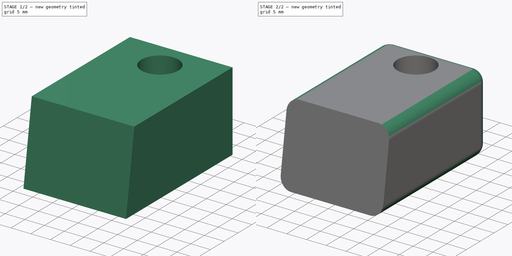
[diagram: build sequence overview — one tinted view per stage of 2, left to right]
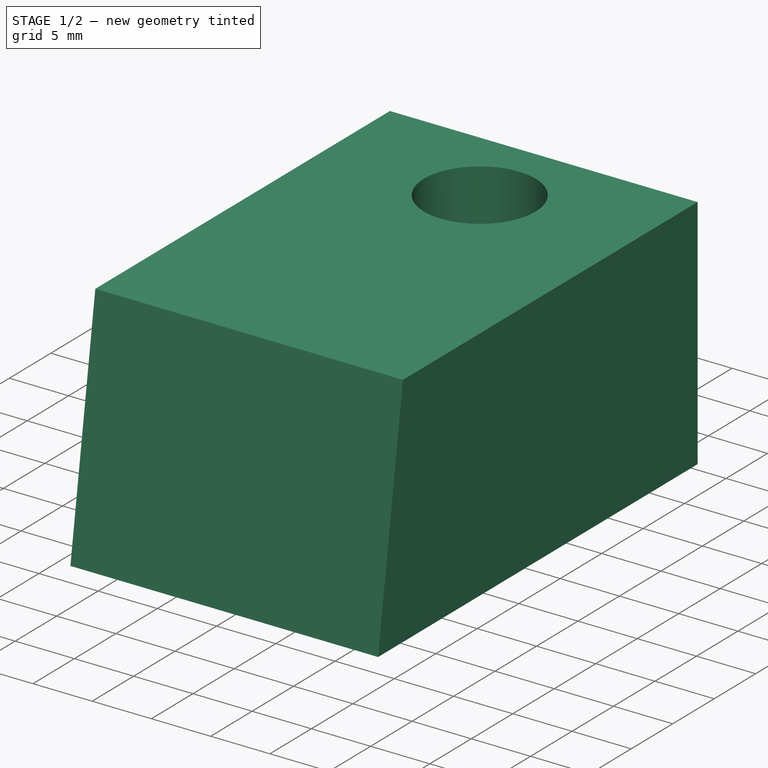
[diagram: stage 1 of 2 — iso view after this stage's code; geometry added in this stage tinted green]
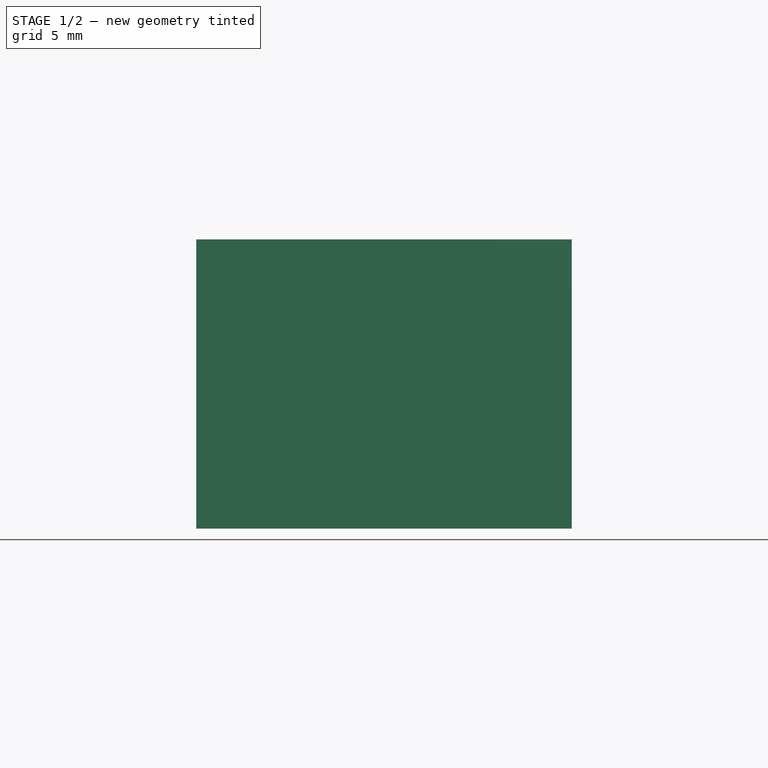
[diagram: stage 1 of 2 — front view after this stage's code; geometry added in this stage tinted green]
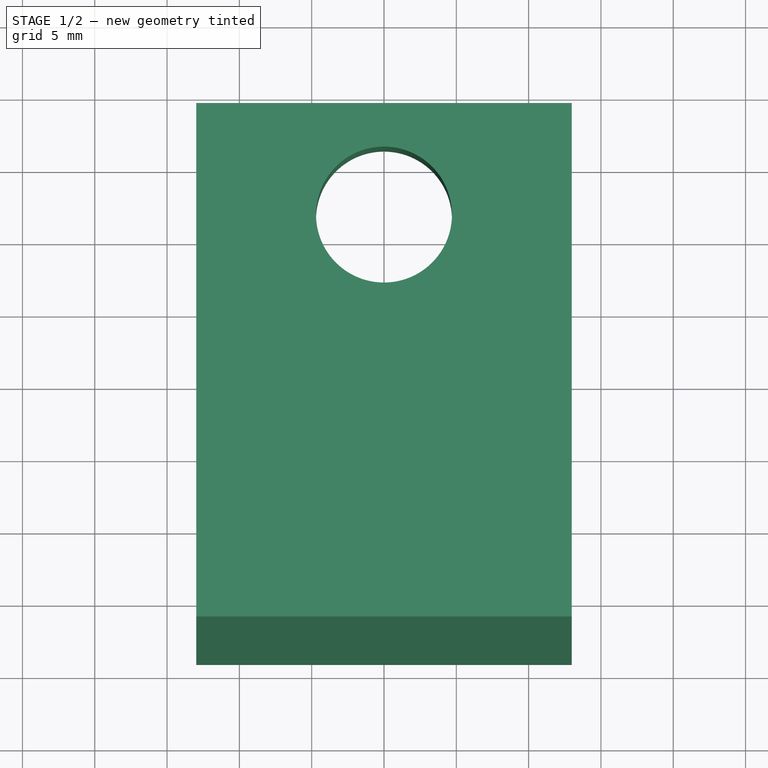
[diagram: stage 1 of 2 — top view after this stage's code; geometry added in this stage tinted green]
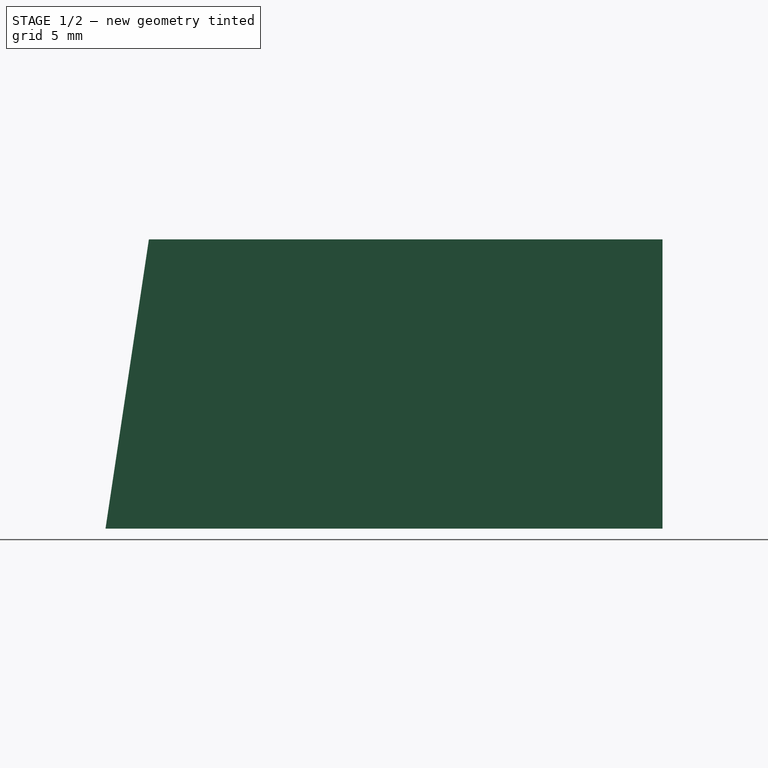
[diagram: stage 1 of 2 — right view after this stage's code; geometry added in this stage tinted green]
FCSTD DOCUMENT  (FreeCAD 0.16R6705 (Git))
Label: salvaantennataranis
License: All rights reserved
LicenseURL: http://it.wikipedia.org/wiki/<copyright redacted>
objects: Sketcher::SketchObject×2, PartDesign::Pad×1, PartDesign::Pocket×1, PartDesign::Fillet×1
note: 7 computed .brp shape members not serialized (recipe doc carries the construction recipe); baked Part::Feature solids carry a one-line shape summary decoded from their .brp

FEATURE [Sketcher::SketchObject] Sketch
  sketch-geometry (5):
    g0: LineSegment StartX=-12.9864 StartY=39.4405 StartZ=0 EndX=12.9864 EndY=39.4405 EndZ=0
    g1: LineSegment StartX=12.9864 StartY=39.4405 StartZ=0 EndX=12.9864 EndY=0.926848 EndZ=0
    g2: LineSegment StartX=12.9864 StartY=0.926848 StartZ=0 EndX=-12.9864 EndY=0.926848 EndZ=0
    g3: LineSegment StartX=-12.9864 StartY=0.926848 StartZ=0 EndX=-12.9864 EndY=39.4405 EndZ=0
    g4: Circle CenterX=0 CenterY=31.7268 CenterZ=0 NormalX=0 NormalY=0 NormalZ=1 Radius=4.7
  constraints (12):
    c: Coincident(g0,g1)
    c: Coincident(g1,g2)
    c: Coincident(g2,g3)
    c: Coincident(g3,g0)
    c: Horizontal(g0)
    c: Horizontal(g2)
    c: Vertical(g1)
    c: Vertical(g3)
    c: Symmetric(g1,g2,g-2)
    c: PointOnObject(g4,g-2)
    c: Radius(g4) = 4.7
    c: DistanceY(g1,g4) = 30.8
FEATURE [PartDesign::Pad] Pad
  Length = 20
  Length2 = 100
  Sketch = -> Sketch
  Type = 0
FEATURE [Sketcher::SketchObject] Sketch001
  ExternalGeometry = -> [Pad]
  Placement = pos=(12.9864,0,0) rot=(0.57735,0.57735,0.57735;2.0944rad)
  Support = -> Pad [Face2]
  sketch-geometry (3):
    g0: LineSegment StartX=0.926848 StartY=20 StartZ=0 EndX=0.926848 EndY=0 EndZ=0
    g1: LineSegment StartX=0.926848 StartY=0 StartZ=0 EndX=3.92685 EndY=20 EndZ=0
    g2: LineSegment StartX=3.92685 StartY=20 StartZ=0 EndX=0.926848 EndY=20 EndZ=0
  constraints (7):
    c: Coincident(g2,g1)
    c: Coincident(g1,g0)
    c: Coincident(g2,g0)
    c: Coincident(g-3,g0)
    c: Coincident(g0,g-4)
    c: PointOnObject(g1,g-4)
    c: DistanceX(g0,g1) = 3
FEATURE [PartDesign::Pocket] Pocket
  Length = 5
  Sketch = -> Sketch001
  Type = 1
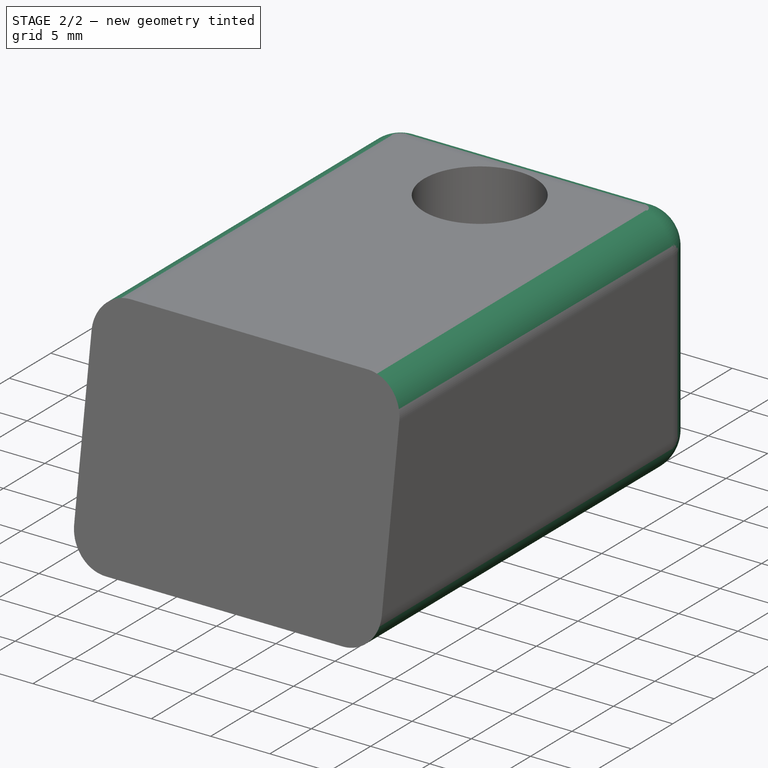
[diagram: stage 2 of 2 — iso view after this stage's code; geometry added in this stage tinted green]
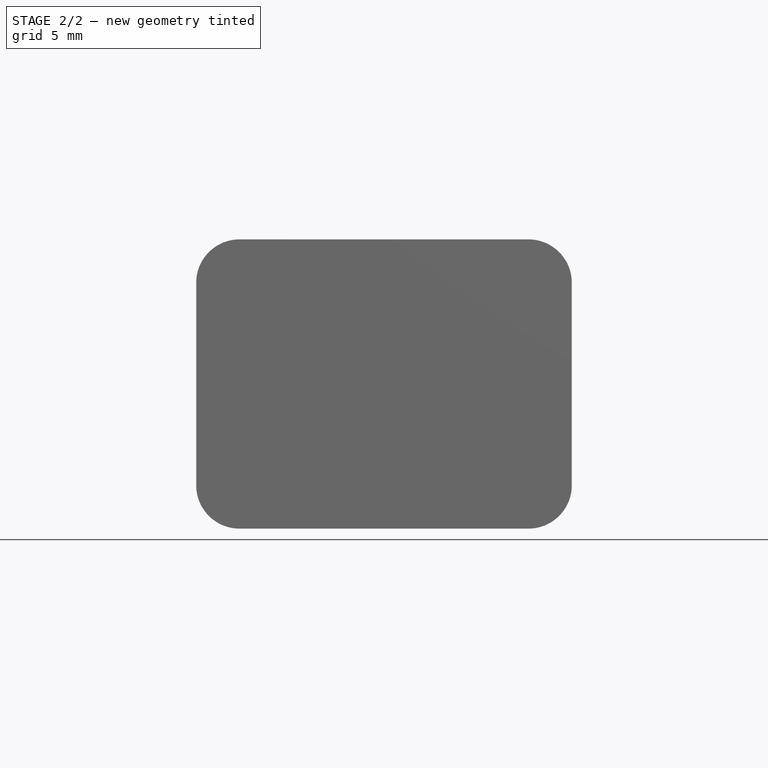
[diagram: stage 2 of 2 — front view after this stage's code; geometry added in this stage tinted green]
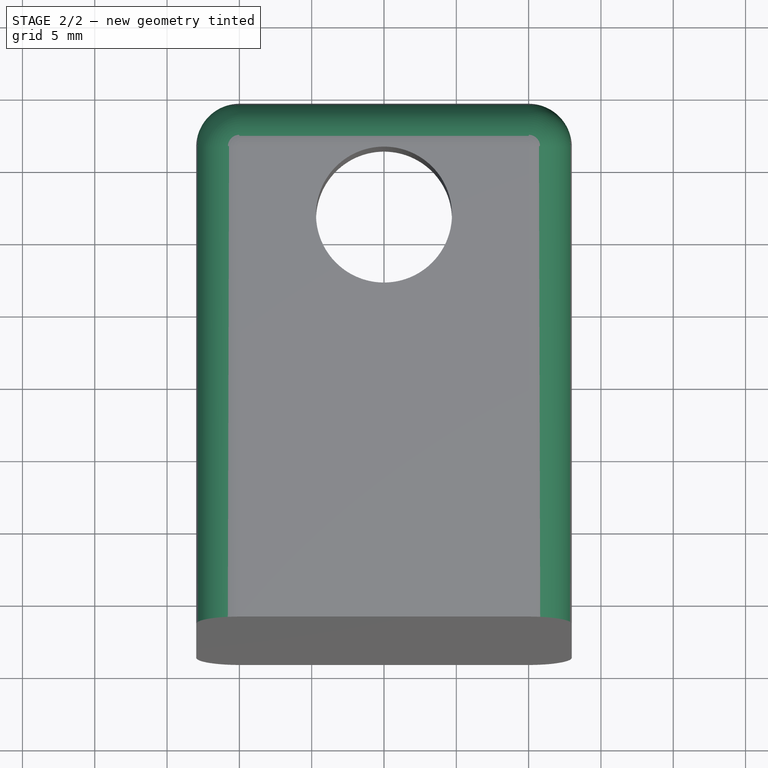
[diagram: stage 2 of 2 — top view after this stage's code; geometry added in this stage tinted green]
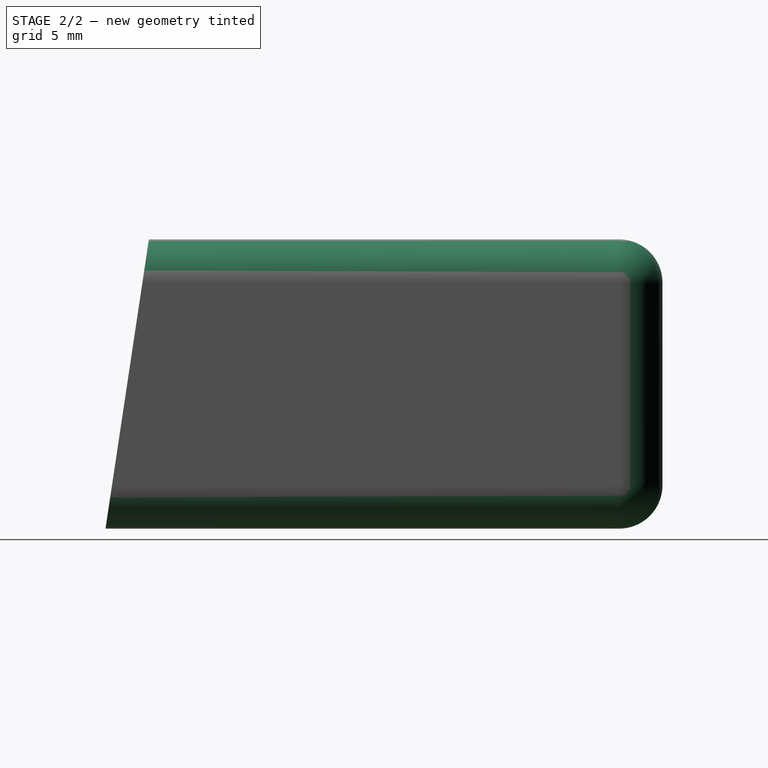
[diagram: stage 2 of 2 — right view after this stage's code; geometry added in this stage tinted green]
FEATURE [PartDesign::Fillet] Fillet
  Base = -> Pocket [Edge2,Edge8,Edge3,Edge5,Edge1,Edge4,Edge10,Edge6]
  Radius = 3
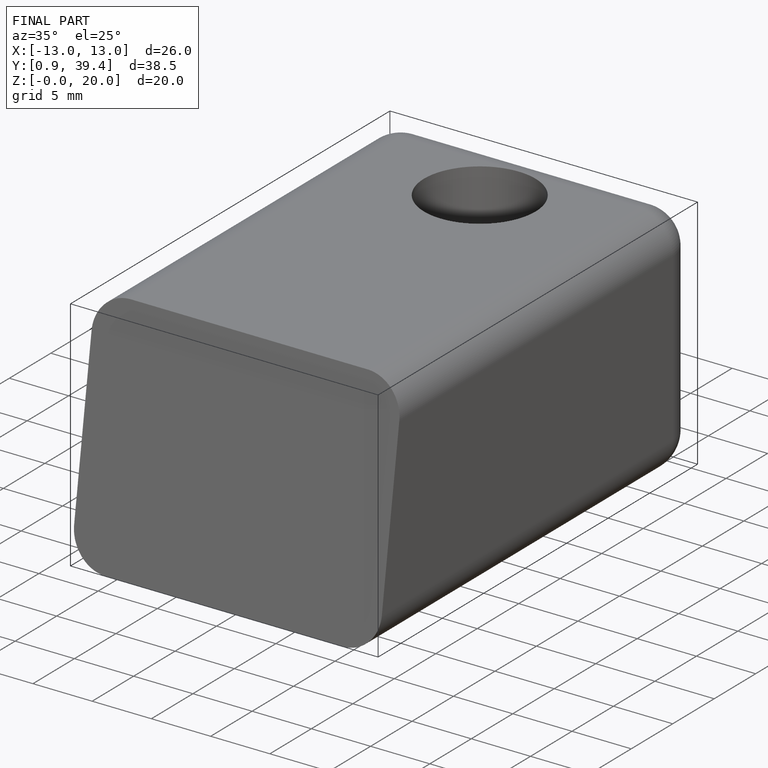
[diagram: finished part — iso view with bounding-box wireframe]
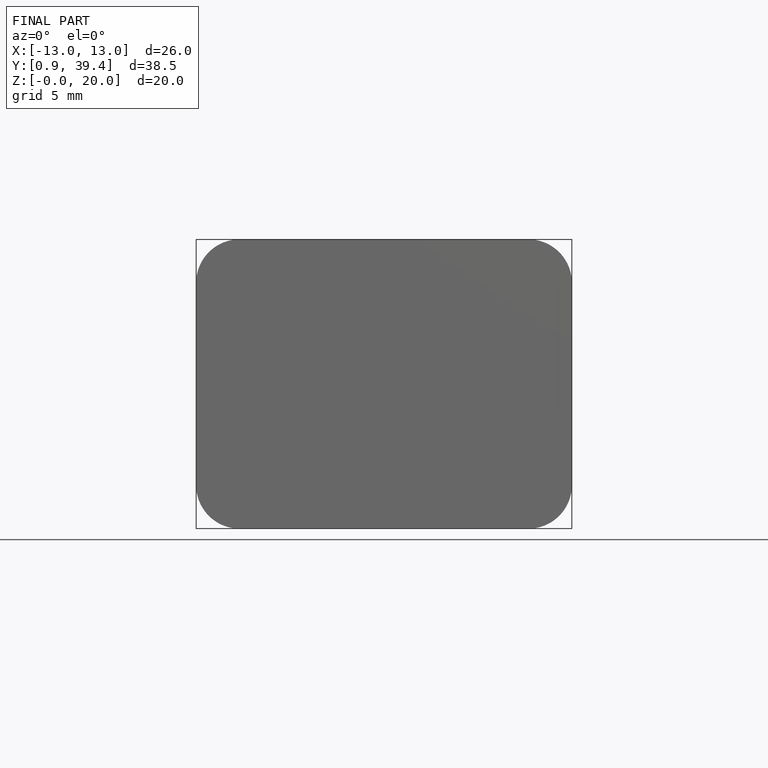
[diagram: finished part — front view with bounding-box wireframe]
